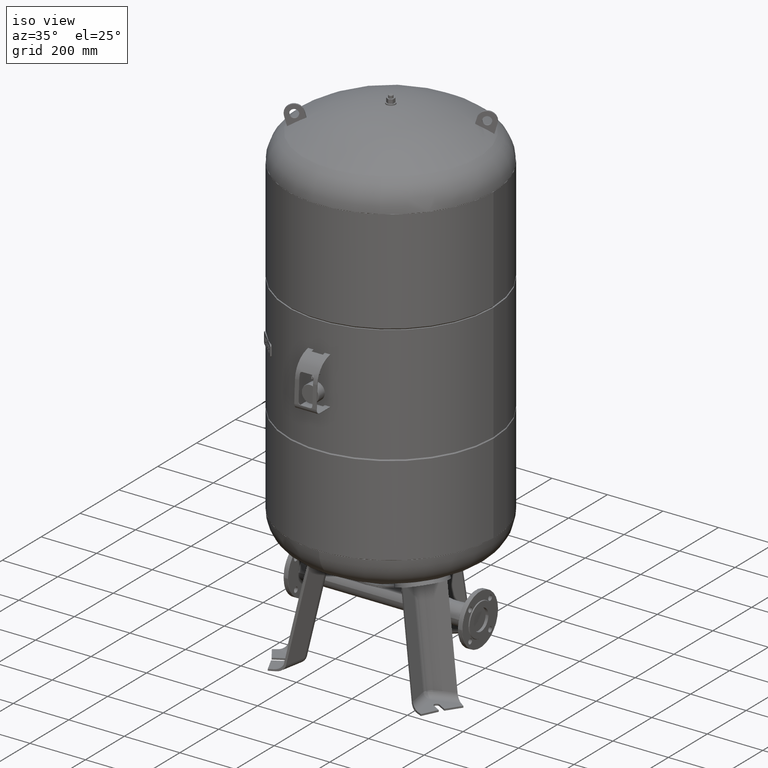
[diagram: clean part render]
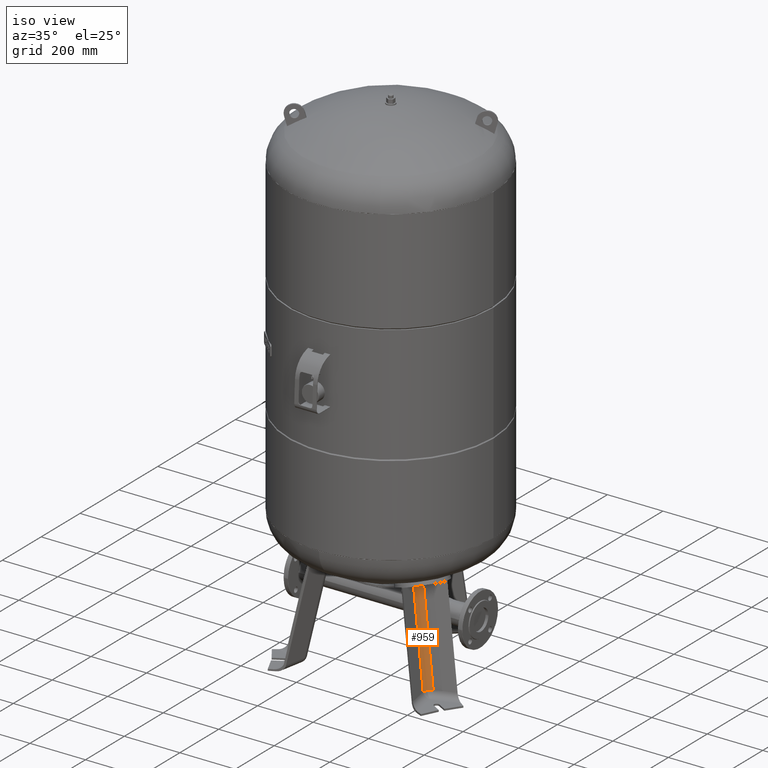
[diagram: same view with one face highlighted and labeled with its STEP entity id]
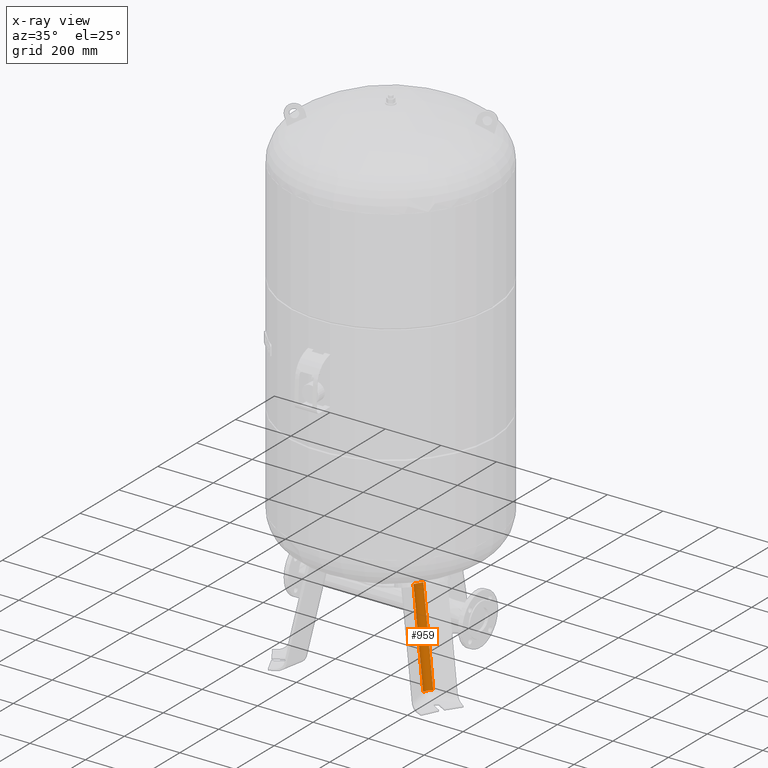
[diagram: x-ray of the same camera — body ghosted, the highlighted face saturated]
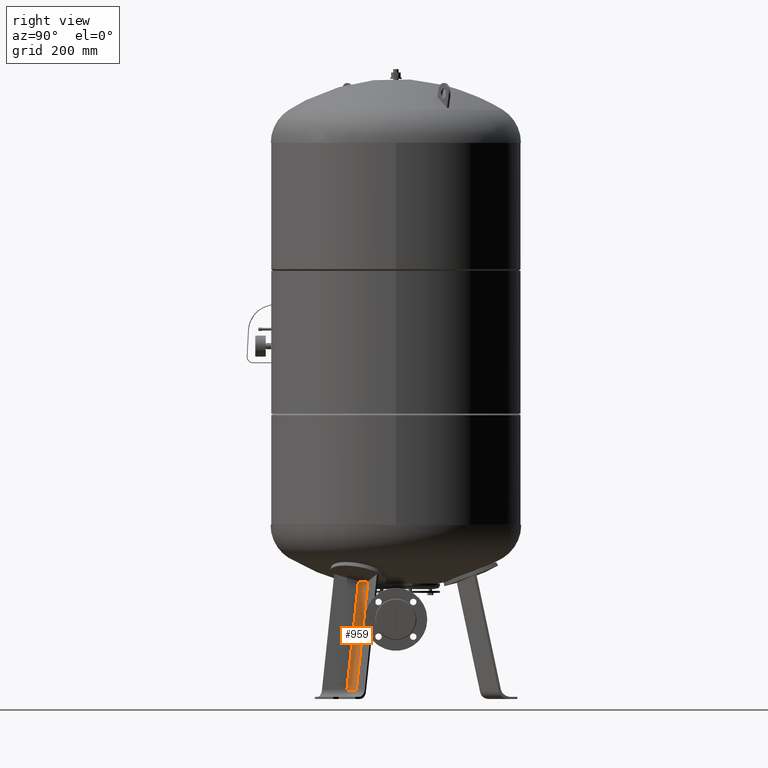
[diagram: same view with one face highlighted and labeled with its STEP entity id]
A machine part, iso view. The second image highlights one B-rep face of the part: STEP entity #959.
The next image is the same camera in x-ray: the body ghosted, the highlighted face saturated — about 0% of this face is hidden behind the body in this view.
A second angle (right view) of the same face is appended — the face is thin or edge-on in the first view.
In plain terms, the highlighted cylindrical surface (edge-blend (fillet) strip) has radius 25 mm, axis along (-0.1801, 0.104, 0.9781).
Its self-contained STEP definition (entity closure, byte-faithful):
#160=CARTESIAN_POINT('',(221.138414915848610,-127.674323379832400,25.802207729556006));
#161=VERTEX_POINT('',#160);
#171=CARTESIAN_POINT('',(218.072409248121460,-144.536932639186090,27.029948423057292));
#172=VERTEX_POINT('',#171);
#173=CARTESIAN_POINT('',(242.315931688005430,-139.901168389004990,30.999999999999996));
#174=DIRECTION('',(-0.180056805991956,0.103955845408880,0.978147600733806));
#175=DIRECTION('',(-0.847100670886274,0.489073800366903,-0.207911690817760));
#176=AXIS2_PLACEMENT_3D('',#173,#174,#175);
#177=CIRCLE('',#176,24.999999999999996);
#178=EDGE_CURVE('',#161,#172,#177,.T.);
#242=CARTESIAN_POINT('',(174.964894062055810,-82.383260228509442,348.869175182353330));
#243=VERTEX_POINT('',#242);
#244=CARTESIAN_POINT('',(158.828443235501170,-110.332412913938700,348.869175182353330));
#245=VERTEX_POINT('',#244);
#246=CARTESIAN_POINT('',(174.964894062055810,-82.383260228509442,348.869175182353330));
#247=CARTESIAN_POINT('',(173.166270852249370,-83.100587145879970,348.329697583407270));
#248=CARTESIAN_POINT('',(171.439075777134320,-84.035841491636091,347.861973689269520));
#249=CARTESIAN_POINT('',(167.566584957722280,-86.757370757502173,346.949686968589330));
#250=CARTESIAN_POINT('',(165.557393725464750,-88.710468956492647,346.595000441711310));
#251=CARTESIAN_POINT('',(161.978634948232920,-93.496974844018723,346.267027499128120));
#252=CARTESIAN_POINT('',(160.542489328171770,-96.359561576029350,346.354955163958210));
#253=CARTESIAN_POINT('',(158.769373519421440,-102.352131702958940,347.030947586440620));
#254=CARTESIAN_POINT('',(158.426470279579350,-105.413338511413710,347.599772949055930));
#255=CARTESIAN_POINT('',(158.669325096512240,-109.062785412168320,348.520992388747520));
#256=CARTESIAN_POINT('',(158.736782739146120,-109.700776949476530,348.691358317945910));
#257=CARTESIAN_POINT('',(158.828443235501170,-110.332412913938700,348.869175182353330));
#258=B_SPLINE_CURVE_WITH_KNOTS('',3,(#246,#247,#248,#249,#250,#251,#252,#253,#254,#255,#256,#257),.UNSPECIFIED.,.F.,.U.,(4,2,2,2,2,4),(6.178732562930628,6.782666790960307,7.624398032083759,8.577958119307457,9.509799036765610,9.709090216410045),.UNSPECIFIED.);
#259=EDGE_CURVE('',#243,#245,#258,.T.);
#594=CARTESIAN_POINT('',(234.208860074676040,-116.587779953756840,27.029948423057284));
#595=VERTEX_POINT('',#594);
#684=CARTESIAN_POINT('',(242.315931688005430,-139.901168389004990,30.999999999999996));
#685=DIRECTION('',(-0.180056805991956,0.103955845408880,0.978147600733806));
#686=DIRECTION('',(-0.847100670886274,0.489073800366903,-0.207911690817760));
#687=AXIS2_PLACEMENT_3D('',#684,#685,#686);
#688=CIRCLE('',#687,24.999999999999996);
#689=EDGE_CURVE('',#595,#161,#688,.T.);
#932=CARTESIAN_POINT('',(234.208860074676040,-116.587779953756840,27.029948423057284));
#933=DIRECTION('',(-0.180056805991956,0.103955845408880,0.978147600733806));
#934=VECTOR('',#933,329.029306535999750);
#935=LINE('',#932,#934);
#936=EDGE_CURVE('',#595,#243,#935,.T.);
#942=CARTESIAN_POINT('',(260.416247001719910,-150.351390307795160,-67.328857379743482));
#943=DIRECTION('',(-0.180056805991956,0.103955845408880,0.978147600733806));
#944=DIRECTION('',(-0.847100670886273,0.489073800366903,-0.207911690817760));
#945=AXIS2_PLACEMENT_3D('',#942,#943,#944);
#946=CYLINDRICAL_SURFACE('',#945,25.000000000000004);
#947=ORIENTED_EDGE('',*,*,#936,.T.);
#948=ORIENTED_EDGE('',*,*,#259,.T.);
#949=CARTESIAN_POINT('',(158.828443235501170,-110.332412913938700,348.869175182353330));
#950=DIRECTION('',(0.180056805991956,-0.103955845408880,-0.978147600733805));
#951=VECTOR('',#950,329.029306535999810);
#952=LINE('',#949,#951);
#953=EDGE_CURVE('',#245,#172,#952,.T.);
#954=ORIENTED_EDGE('',*,*,#953,.T.);
#955=ORIENTED_EDGE('',*,*,#178,.F.);
#956=ORIENTED_EDGE('',*,*,#689,.F.);
#957=EDGE_LOOP('',(#947,#948,#954,#955,#956));
#958=FACE_OUTER_BOUND('',#957,.T.);
#959=ADVANCED_FACE('',(#958),#946,.F.);